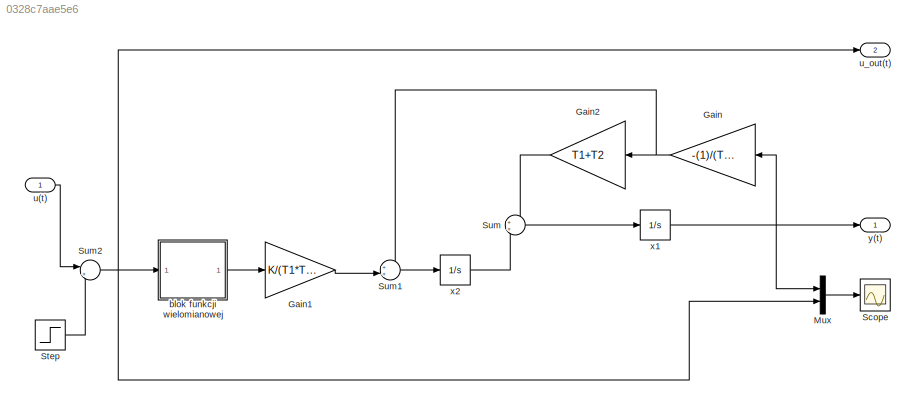
MODEL slx_0328c7aae5e6
KIND model
BLOCK [Gain] Gain
  Gain = -(1)/(T1*T2)
  OutDataTypeStr = Inherit: Inherit via internal rule
  ParamDataTypeStr = Inherit: Inherit via internal rule
  SaturateOnIntegerOverflow = off
BLOCK [Gain] Gain1
  Gain = K/(T1*T2)
  OutDataTypeStr = Inherit: Inherit via internal rule
  ParamDataTypeStr = Inherit: Inherit via internal rule
  SaturateOnIntegerOverflow = off
BLOCK [Gain] Gain2
  Gain = T1+T2
  OutDataTypeStr = Inherit: Inherit via internal rule
  ParamDataTypeStr = Inherit: Inherit via internal rule
  SaturateOnIntegerOverflow = off
BLOCK [Mux] Mux
  DisplayOption = bar
  Inputs = 2
  Ports = [2, 1]
BLOCK [Scope] Scope
  Floating = off
  NumInputPorts = 1
  Ports = [1]
  ShowLegends = off
  ZoomMode = xonly
BLOCK [Step] Step
  SampleTime = 0
BLOCK [Sum] Sum
  IconShape = round
  InputSameDT = off
  OutDataTypeStr = Inherit: Inherit via internal rule
  Ports = [2, 1]
  SaturateOnIntegerOverflow = off
BLOCK [Sum] Sum1
  IconShape = round
  InputSameDT = off
  Inputs = ++|
  OutDataTypeStr = Inherit: Inherit via internal rule
  Ports = [2, 1]
  SaturateOnIntegerOverflow = off
BLOCK [Sum] Sum2
  IconShape = round
  InputSameDT = off
  Inputs = |++
  OutDataTypeStr = Inherit: Inherit via internal rule
  Ports = [2, 1]
  SaturateOnIntegerOverflow = off
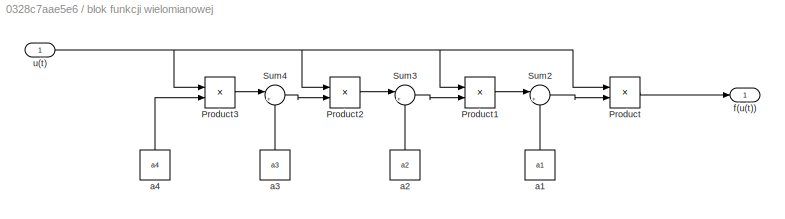
BLOCK [SubSystem] blok funkcji wielomianowej
  Ports = [1, 1]
  RequestExecContextInheritance = off
BLOCK [Product] blok funkcji wielomianowej/Product
  InputSameDT = off
  OutDataTypeStr = Inherit: Inherit via internal rule
  Ports = [2, 1]
  RndMeth = Floor
  SaturateOnIntegerOverflow = off
BLOCK [Product] blok funkcji wielomianowej/Product1
  InputSameDT = off
  OutDataTypeStr = Inherit: Inherit via internal rule
  Ports = [2, 1]
  RndMeth = Floor
  SaturateOnIntegerOverflow = off
BLOCK [Product] blok funkcji wielomianowej/Product2
  InputSameDT = off
  OutDataTypeStr = Inherit: Inherit via internal rule
  Ports = [2, 1]
  RndMeth = Floor
  SaturateOnIntegerOverflow = off
BLOCK [Product] blok funkcji wielomianowej/Product3
  InputSameDT = off
  OutDataTypeStr = Inherit: Inherit via internal rule
  Ports = [2, 1]
  RndMeth = Floor
  SaturateOnIntegerOverflow = off
BLOCK [Sum] blok funkcji wielomianowej/Sum2
  IconShape = round
  InputSameDT = off
  Inputs = |++
  OutDataTypeStr = Inherit: Inherit via internal rule
  Ports = [2, 1]
  SaturateOnIntegerOverflow = off
BLOCK [Sum] blok funkcji wielomianowej/Sum3
  IconShape = round
  InputSameDT = off
  Inputs = |++
  OutDataTypeStr = Inherit: Inherit via internal rule
  Ports = [2, 1]
  SaturateOnIntegerOverflow = off
BLOCK [Sum] blok funkcji wielomianowej/Sum4
  IconShape = round
  InputSameDT = off
  Inputs = |++
  OutDataTypeStr = Inherit: Inherit via internal rule
  Ports = [2, 1]
  SaturateOnIntegerOverflow = off
BLOCK [Constant] blok funkcji wielomianowej/a1
  Value = a1
BLOCK [Constant] blok funkcji wielomianowej/a2
  Value = a2
BLOCK [Constant] blok funkcji wielomianowej/a3
  Value = a3
BLOCK [Constant] blok funkcji wielomianowej/a4
  Value = a4
BLOCK [Outport] blok funkcji wielomianowej/f(u(t))
  IconDisplay = Port number
BLOCK [Inport] blok funkcji wielomianowej/u(t)
  IconDisplay = Port number
BLOCK [Inport] u(t)
  IconDisplay = Port number
BLOCK [Outport] u_out(t)
  IconDisplay = Port number
  Port = 2
BLOCK [Integrator] x1
  ContinuousStateAttributes = 'x1'
  InitialCondition = x0(1)
  Ports = [1, 1]
BLOCK [Integrator] x2
  ContinuousStateAttributes = 'x2'
  InitialCondition = x0(2)
  Ports = [1, 1]
BLOCK [Outport] y(t)
  IconDisplay = Port number
LINE Gain1:1 -> Sum1:2
LINE Gain2:1 -> Sum:1
NET Gain:1 -> Gain2:1, Sum1:1
LINE Mux:1 -> Scope:1
LINE Step:1 -> Sum2:2
LINE Sum1:1 -> x2:1
NET Sum2:1 -> Mux:2, blok funkcji wielomianowej:1, u_out(t):1
LINE Sum:1 -> x1:1
LINE blok funkcji wielomianowej/Product1:1 -> blok funkcji wielomianowej/Sum2:1
LINE blok funkcji wielomianowej/Product2:1 -> blok funkcji wielomianowej/Sum3:1
LINE blok funkcji wielomianowej/Product3:1 -> blok funkcji wielomianowej/Sum4:1
LINE blok funkcji wielomianowej/Product:1 -> blok funkcji wielomianowej/f(u(t)):1
LINE blok funkcji wielomianowej/Sum2:1 -> blok funkcji wielomianowej/Product:2
LINE blok funkcji wielomianowej/Sum3:1 -> blok funkcji wielomianowej/Product1:2
LINE blok funkcji wielomianowej/Sum4:1 -> blok funkcji wielomianowej/Product2:2
LINE blok funkcji wielomianowej/a1:1 -> blok funkcji wielomianowej/Sum2:2
LINE blok funkcji wielomianowej/a2:1 -> blok funkcji wielomianowej/Sum3:2
LINE blok funkcji wielomianowej/a3:1 -> blok funkcji wielomianowej/Sum4:2
LINE blok funkcji wielomianowej/a4:1 -> blok funkcji wielomianowej/Product3:2
NET blok funkcji wielomianowej/u(t):1 -> blok funkcji wielomianowej/Product1:1, blok funkcji wielomianowej/Product2:1, blok funkcji wielomianowej/Product3:1, blok funkcji wielomianowej/Product:1
LINE blok funkcji wielomianowej:1 -> Gain1:1
LINE u(t):1 -> Sum2:1
NET x1:1 -> Gain:1, Mux:1, y(t):1
LINE x2:1 -> Sum:2
note: NET lines group one-source signal fan-out (src -> all destinations, sorted); 1:1 wires keep LINE
